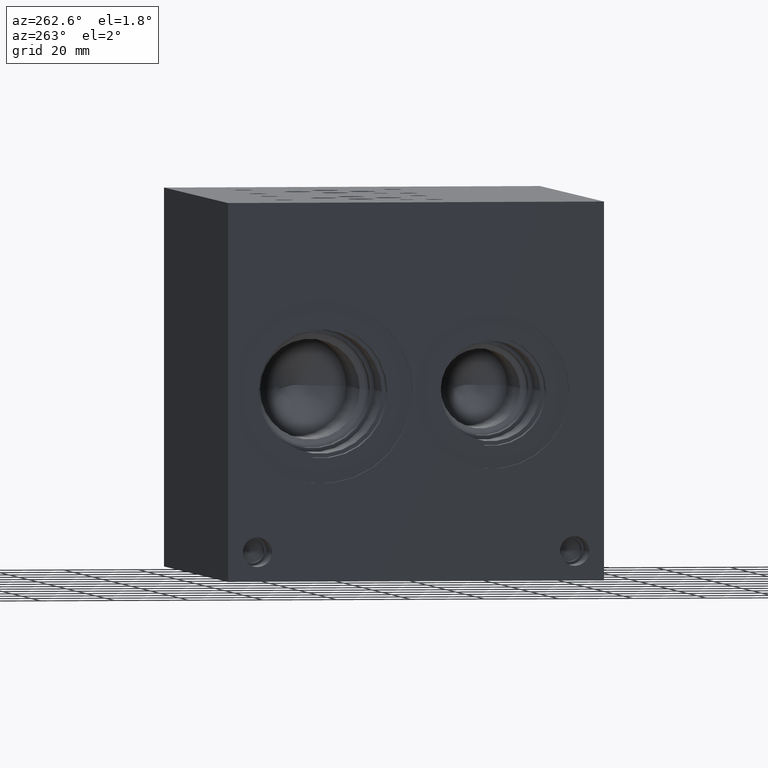
[diagram: clean part render]
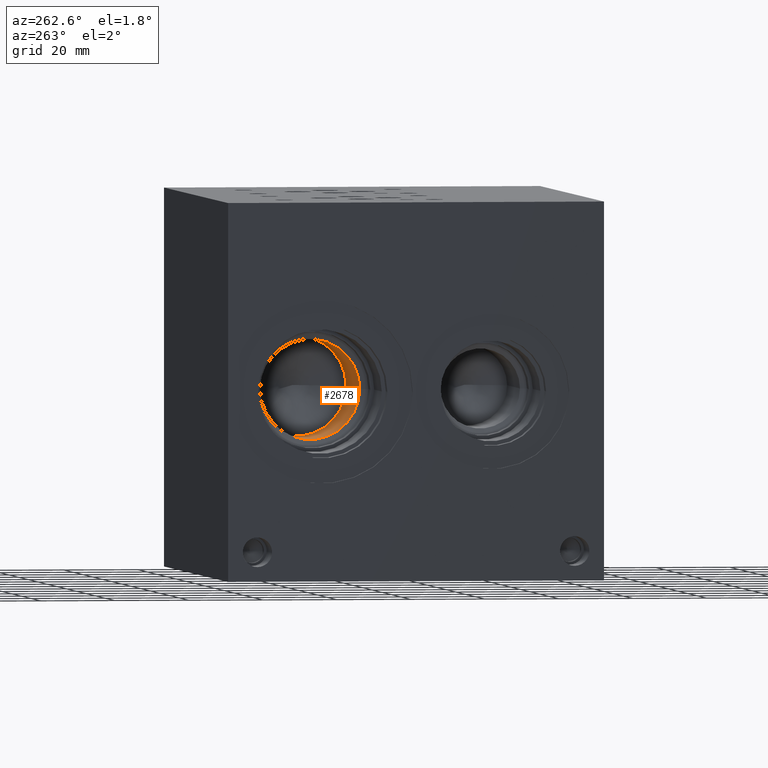
[diagram: same view with one face highlighted and labeled with its STEP entity id]
A machine part, auxiliary view. The second image highlights one B-rep face of the part: STEP entity #2678.
In plain terms, the highlighted cylindrical surface (bore or boss wall) has radius 13.4874 mm, axis along (-1, 0, 0).
Its self-contained STEP definition (entity closure, byte-faithful):
#137=CYLINDRICAL_SURFACE('',#2900,13.4874);
#228=FACE_OUTER_BOUND('',#394,.T.);
#394=EDGE_LOOP('',(#1945,#1946,#1947,#1948,#1949));
#602=LINE('',#4394,#730);
#730=VECTOR('',#3434,13.4874);
#885=CIRCLE('',#2898,13.4874);
#886=CIRCLE('',#2899,13.4874);
#887=CIRCLE('',#2901,13.4874);
#1159=VERTEX_POINT('',#4385);
#1160=VERTEX_POINT('',#4386);
#1162=VERTEX_POINT('',#4392);
#1483=EDGE_CURVE('',#1159,#1160,#885,.T.);
#1485=EDGE_CURVE('',#1160,#1159,#886,.T.);
#1486=EDGE_CURVE('',#1162,#1162,#887,.T.);
#1487=EDGE_CURVE('',#1162,#1160,#602,.T.);
#1945=ORIENTED_EDGE('',*,*,#1486,.F.);
#1946=ORIENTED_EDGE('',*,*,#1487,.T.);
#1947=ORIENTED_EDGE('',*,*,#1483,.F.);
#1948=ORIENTED_EDGE('',*,*,#1485,.F.);
#1949=ORIENTED_EDGE('',*,*,#1487,.F.);
#2678=ADVANCED_FACE('',(#228),#137,.F.);
#2898=AXIS2_PLACEMENT_3D('',#4387,#3425,#3426);
#2899=AXIS2_PLACEMENT_3D('',#4390,#3428,#3429);
#2900=AXIS2_PLACEMENT_3D('',#4391,#3430,#3431);
#2901=AXIS2_PLACEMENT_3D('',#4393,#3432,#3433);
#3425=DIRECTION('center_axis',(-1.,0.,0.));
#3426=DIRECTION('ref_axis',(0.,1.,0.));
#3428=DIRECTION('center_axis',(-1.,0.,0.));
#3429=DIRECTION('ref_axis',(0.,1.,0.));
#3430=DIRECTION('center_axis',(-1.,0.,0.));
#3431=DIRECTION('ref_axis',(0.,1.,0.));
#3432=DIRECTION('center_axis',(1.,0.,0.));
#3433=DIRECTION('ref_axis',(0.,1.,0.));
#3434=DIRECTION('',(1.,0.,0.));
#4385=CARTESIAN_POINT('',(53.78849,89.6874,50.8));
#4386=CARTESIAN_POINT('',(53.78849,62.7126,50.8));
#4387=CARTESIAN_POINT('Origin',(53.78849,76.2,50.8));
#4390=CARTESIAN_POINT('Origin',(53.78849,76.2,50.8));
#4391=CARTESIAN_POINT('Origin',(26.894245,76.2,50.8));
#4392=CARTESIAN_POINT('',(25.3854468827617,62.7126,50.8));
#4393=CARTESIAN_POINT('Origin',(25.3854468827617,76.2,50.8));
#4394=CARTESIAN_POINT('',(26.894245,62.7126,50.8));